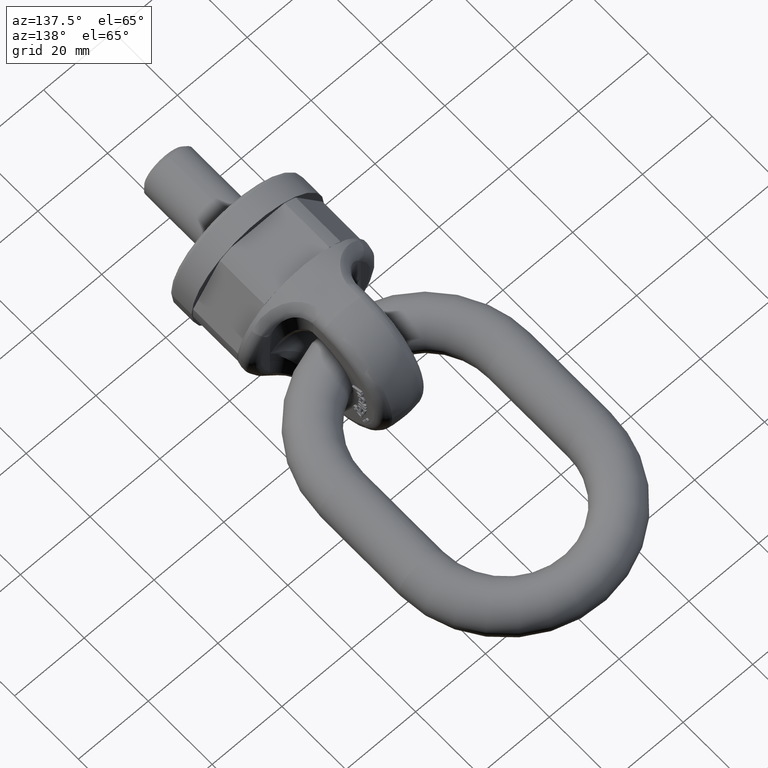
[diagram: clean part render]
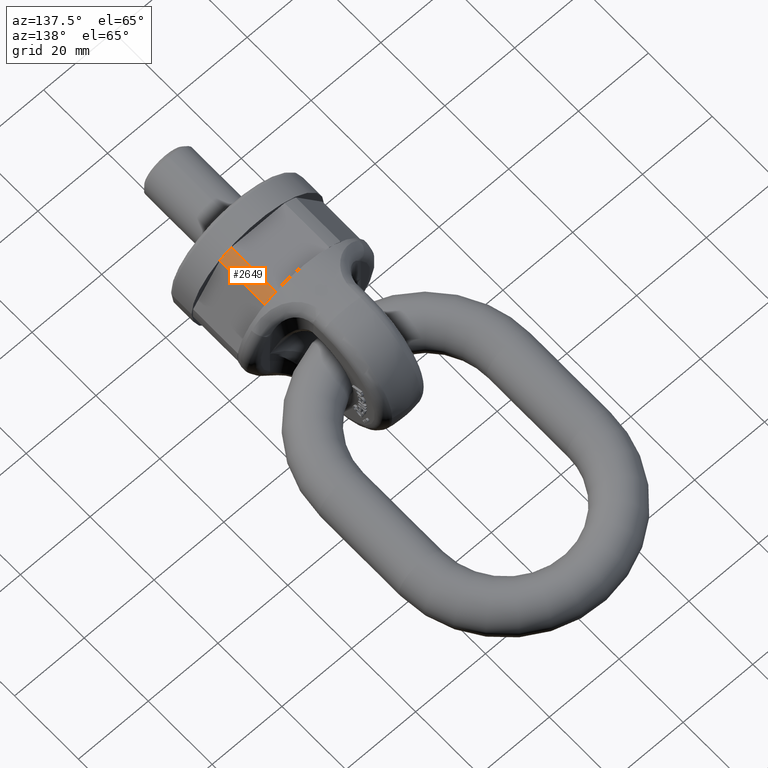
[diagram: same view with one face highlighted and labeled with its STEP entity id]
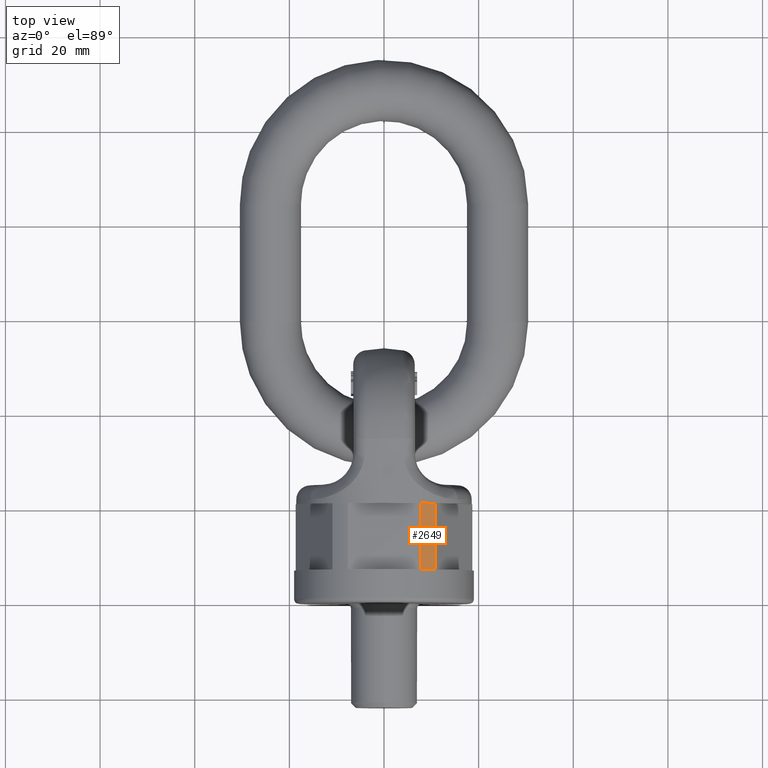
[diagram: same view with one face highlighted and labeled with its STEP entity id]
A machine part, auxiliary view. The second image highlights one B-rep face of the part: STEP entity #2649.
A second angle (top view) of the same face is appended — the face is thin or edge-on in the first view.
In plain terms, the highlighted cylindrical surface (partial cylindrical patch) has radius 18.6484 mm, axis along (-0, 1, 0).
Its self-contained STEP definition (entity closure, byte-faithful):
#1807=FACE_OUTER_BOUND('',#3072,.T.);
#2015=CYLINDRICAL_SURFACE('',#5624,18.6484136948227);
#2051=LINE('',#6621,#2307);
#2055=LINE('',#6629,#2311);
#2307=VECTOR('',#5855,1.);
#2311=VECTOR('',#5861,1.);
#2649=ADVANCED_FACE('',(#1807),#2015,.T.);
#3072=EDGE_LOOP('',(#3404,#3405,#3406,#3407));
#3404=ORIENTED_EDGE('',*,*,#4937,.F.);
#3405=ORIENTED_EDGE('',*,*,#4961,.T.);
#3406=ORIENTED_EDGE('',*,*,#4970,.T.);
#3407=ORIENTED_EDGE('',*,*,#4965,.T.);
#4538=VERTEX_POINT('',#6570);
#4540=VERTEX_POINT('',#6573);
#4559=VERTEX_POINT('',#6622);
#4562=VERTEX_POINT('',#6630);
#4937=EDGE_CURVE('',#4538,#4540,#5532,.T.);
#4961=EDGE_CURVE('',#4538,#4559,#2051,.T.);
#4965=EDGE_CURVE('',#4562,#4540,#2055,.T.);
#4970=EDGE_CURVE('',#4559,#4562,#5542,.T.);
#5532=CIRCLE('',#5600,18.6484136948227);
#5542=CIRCLE('',#5618,18.6484136948227);
#5600=AXIS2_PLACEMENT_3D('',#6572,#5812,#5813);
#5618=AXIS2_PLACEMENT_3D('',#6636,#5871,#5872);
#5624=AXIS2_PLACEMENT_3D('',#6642,#5883,#5884);
#5812=DIRECTION('',(3.82702124733548E-17,-1.,0.));
#5813=DIRECTION('',(-1.,-4.65112878866048E-17,0.));
#5855=DIRECTION('',(-2.4492935982947E-17,1.,0.));
#5861=DIRECTION('',(2.4492935982947E-17,-1.,0.));
#5871=DIRECTION('',(0.,-1.,0.));
#5872=DIRECTION('',(0.,0.,-1.));
#5883=DIRECTION('',(-2.4492935982947E-17,1.,0.));
#5884=DIRECTION('',(-1.,-2.4492935982947E-17,0.));
#6570=CARTESIAN_POINT('',(10.8895695744386,7.,15.1387122245161));
#6572=CARTESIAN_POINT('',(-1.71450551880629E-16,7.,0.));
#6573=CARTESIAN_POINT('',(7.66572457979367,7.,17.));
#6621=CARTESIAN_POINT('',(10.8895695744386,-9.38780506978953E-17,15.1387122245161));
#6622=CARTESIAN_POINT('',(10.8895695744386,21.,15.1387122245161));
#6629=CARTESIAN_POINT('',(7.66572457979367,1.8775610139579E-16,17.));
#6630=CARTESIAN_POINT('',(7.66572457979366,21.,17.));
#6636=CARTESIAN_POINT('',(-5.14351655641888E-16,21.,0.));
#6642=CARTESIAN_POINT('',(0.,0.,0.));